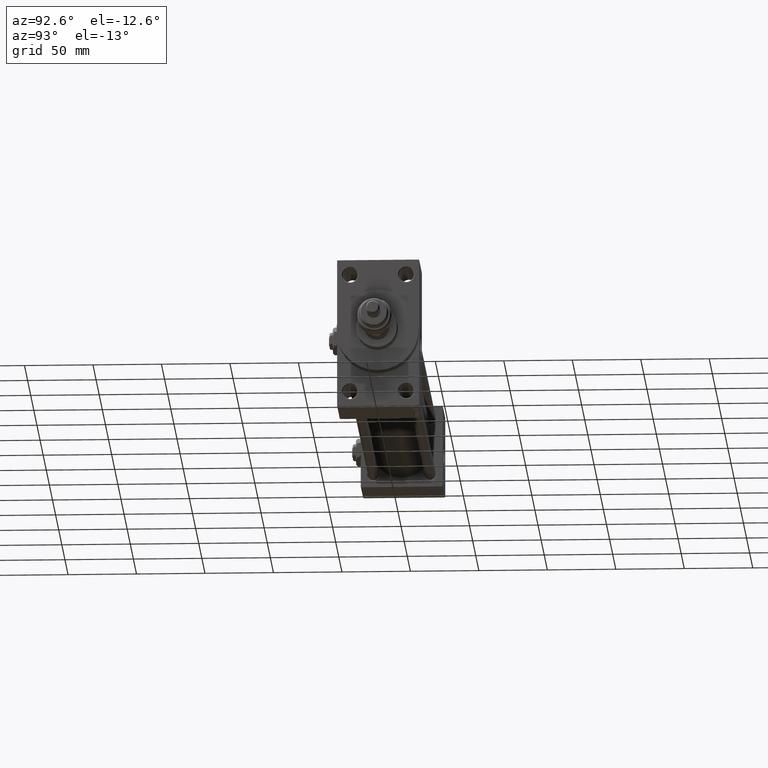
[diagram: clean part render]
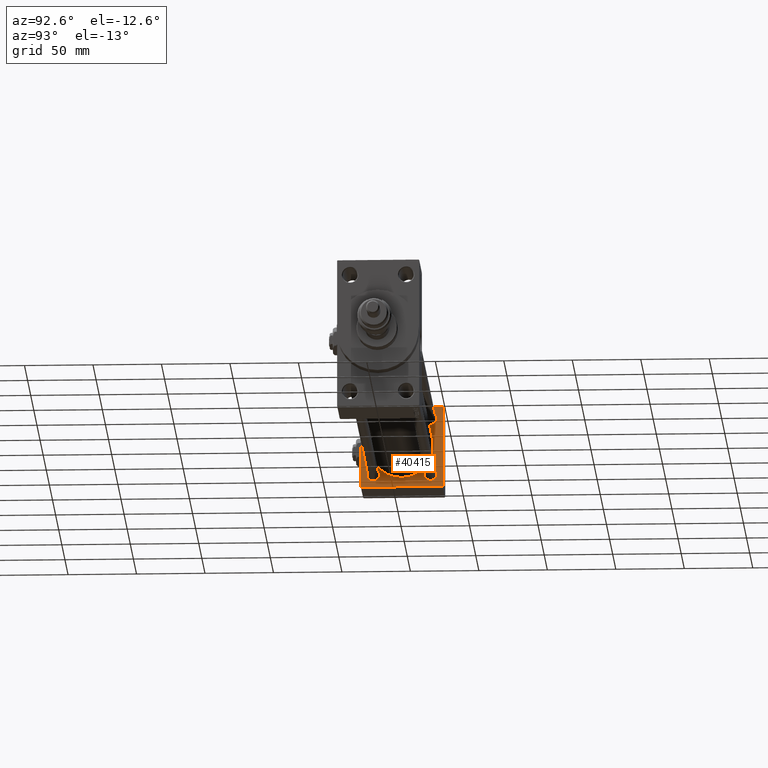
[diagram: same view with one face highlighted and labeled with its STEP entity id]
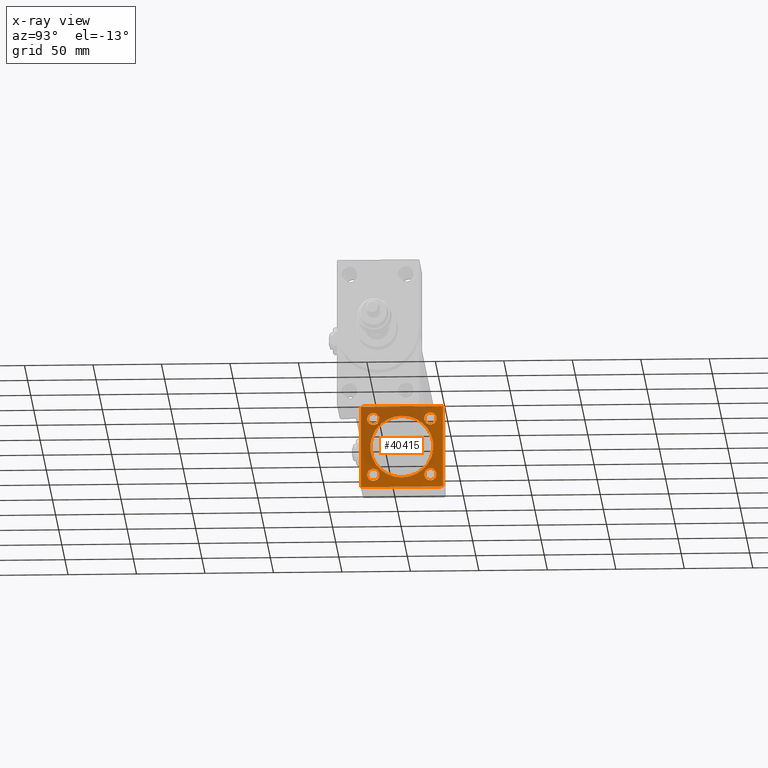
[diagram: x-ray of the same camera — body ghosted, the highlighted face saturated]
A machine part, auxiliary view. The second image highlights one B-rep face of the part: STEP entity #40415.
The next image is the same camera in x-ray: the body ghosted, the highlighted face saturated — about 42% of this face is hidden behind the body in this view.
In plain terms, the highlighted planar face has unit normal (-1, 0, 0).
Its self-contained STEP definition (entity closure, byte-faithful):
#711 = DIRECTION ( 'NONE',  ( 0.000000000000000000, 0.000000000000000000, 1.000000000000000000 ) ) ;
#742 = CARTESIAN_POINT ( 'NONE',  ( 36.99999999999997868, -2.602085213965210642E-15, 0.000000000000000000 ) ) ;
#825 = FACE_OUTER_BOUND ( 'NONE', #29145, .T. ) ;
#937 = EDGE_LOOP ( 'NONE', ( #11027, #6806 ) ) ;
#1922 = EDGE_CURVE ( 'NONE', #8407, #18003, #30887, .T. ) ;
#1980 = CIRCLE ( 'NONE', #12115, 4.499999999999948486 ) ;
#1992 = VERTEX_POINT ( 'NONE', #27371 ) ;
#3223 = DIRECTION ( 'NONE',  ( 0.000000000000000000, 0.000000000000000000, -1.000000000000000000 ) ) ;
#3357 = VERTEX_POINT ( 'NONE', #50606 ) ;
#3546 = EDGE_LOOP ( 'NONE', ( #45338, #19211 ) ) ;
#4081 = EDGE_CURVE ( 'NONE', #41299, #15982, #1980, .T. ) ;
#4330 = CARTESIAN_POINT ( 'NONE',  ( 37.00000000000000000, 20.84999999999999787, 16.35000000000005116 ) ) ;
#4515 = FACE_BOUND ( 'NONE', #40660, .T. ) ;
#5485 = AXIS2_PLACEMENT_3D ( 'NONE', #30719, #42828, #6760 ) ;
#5816 = DIRECTION ( 'NONE',  ( -0.000000000000000000, 0.000000000000000000, 1.000000000000000000 ) ) ;
#6308 = CARTESIAN_POINT ( 'NONE',  ( 37.00000000000000000, -20.84999999999999076, 20.85000000000000497 ) ) ;
#6760 = DIRECTION ( 'NONE',  ( 0.000000000000000000, 0.000000000000000000, 1.000000000000000000 ) ) ;
#6806 = ORIENTED_EDGE ( 'NONE', *, *, #28865, .T. ) ;
#7204 = ORIENTED_EDGE ( 'NONE', *, *, #37192, .T. ) ;
#8170 = DIRECTION ( 'NONE',  ( 0.000000000000000000, 0.000000000000000000, 1.000000000000000000 ) ) ;
#8201 = LINE ( 'NONE', #24282, #18534 ) ;
#8292 = CARTESIAN_POINT ( 'NONE',  ( 37.00000000000000000, 20.84999999999999787, 25.34999999999994813 ) ) ;
#8407 = VERTEX_POINT ( 'NONE', #12892 ) ;
#8701 = CARTESIAN_POINT ( 'NONE',  ( 37.00000000000000000, 20.84999999999999787, -20.85000000000000142 ) ) ;
#9257 = FACE_BOUND ( 'NONE', #3546, .T. ) ;
#9828 = CARTESIAN_POINT ( 'NONE',  ( 37.00000000000000000, -29.50000000000000000, -30.00000000000000711 ) ) ;
#9992 = VERTEX_POINT ( 'NONE', #39918 ) ;
#10056 = CARTESIAN_POINT ( 'NONE',  ( 37.00000000000000000, 29.99999999999999289, -30.00000000000000000 ) ) ;
#10445 = DIRECTION ( 'NONE',  ( -1.000000000000000000, 0.000000000000000000, -0.000000000000000000 ) ) ;
#10509 = ORIENTED_EDGE ( 'NONE', *, *, #1922, .F. ) ;
#10607 = CARTESIAN_POINT ( 'NONE',  ( 37.00000000000000000, 20.84999999999999787, -16.35000000000005116 ) ) ;
#11027 = ORIENTED_EDGE ( 'NONE', *, *, #15698, .T. ) ;
#11511 = VECTOR ( 'NONE', #45827, 999.9999999999998863 ) ;
#12115 = AXIS2_PLACEMENT_3D ( 'NONE', #46524, #10445, #33367 ) ;
#12577 = ORIENTED_EDGE ( 'NONE', *, *, #13838, .T. ) ;
#12760 = VERTEX_POINT ( 'NONE', #47986 ) ;
#12892 = CARTESIAN_POINT ( 'NONE',  ( 37.00000000000000000, 29.99999999999999289, 29.50000000000000000 ) ) ;
#13353 = ORIENTED_EDGE ( 'NONE', *, *, #13804, .T. ) ;
#13804 = EDGE_CURVE ( 'NONE', #12760, #18003, #41604, .T. ) ;
#13838 = EDGE_CURVE ( 'NONE', #17183, #50566, #26672, .T. ) ;
#14189 = ORIENTED_EDGE ( 'NONE', *, *, #18550, .T. ) ;
#14493 = CARTESIAN_POINT ( 'NONE',  ( 37.00000000000000000, 29.99999999999999289, -29.50000000000000000 ) ) ;
#15287 = LINE ( 'NONE', #38982, #45207 ) ;
#15495 = EDGE_LOOP ( 'NONE', ( #17549, #51098 ) ) ;
#15627 = CIRCLE ( 'NONE', #5485, 4.499999999999948486 ) ;
#15676 = LINE ( 'NONE', #30953, #40955 ) ;
#15698 = EDGE_CURVE ( 'NONE', #31488, #22101, #25046, .T. ) ;
#15931 = AXIS2_PLACEMENT_3D ( 'NONE', #49439, #17052, #711 ) ;
#15982 = VERTEX_POINT ( 'NONE', #8292 ) ;
#16550 = AXIS2_PLACEMENT_3D ( 'NONE', #6308, #21884, #22394 ) ;
#17052 = DIRECTION ( 'NONE',  ( -1.000000000000000000, 0.000000000000000000, -0.000000000000000000 ) ) ;
#17183 = VERTEX_POINT ( 'NONE', #35761 ) ;
#17279 = AXIS2_PLACEMENT_3D ( 'NONE', #8701, #45547, #28974 ) ;
#17372 = VERTEX_POINT ( 'NONE', #27023 ) ;
#17549 = ORIENTED_EDGE ( 'NONE', *, *, #18882, .F. ) ;
#17786 = ORIENTED_EDGE ( 'NONE', *, *, #4081, .T. ) ;
#18003 = VERTEX_POINT ( 'NONE', #37920 ) ;
#18265 = CARTESIAN_POINT ( 'NONE',  ( 37.00000000000000000, 29.99999999999999289, 30.00000000000000000 ) ) ;
#18534 = VECTOR ( 'NONE', #3223, 1000.000000000000000 ) ;
#18550 = EDGE_CURVE ( 'NONE', #44115, #9992, #8201, .T. ) ;
#18561 = AXIS2_PLACEMENT_3D ( 'NONE', #742, #45502, #44470 ) ;
#18882 = EDGE_CURVE ( 'NONE', #17372, #3357, #34540, .T. ) ;
#19211 = ORIENTED_EDGE ( 'NONE', *, *, #43689, .T. ) ;
#19374 = CARTESIAN_POINT ( 'NONE',  ( 37.00000000000000000, -20.84999999999999076, -20.85000000000000497 ) ) ;
#19760 = DIRECTION ( 'NONE',  ( 0.000000000000000000, -1.000000000000000000, -1.156482317317871725E-16 ) ) ;
#20018 = CARTESIAN_POINT ( 'NONE',  ( 37.00000000000000000, 20.84999999999999787, -20.85000000000000142 ) ) ;
#20036 = ORIENTED_EDGE ( 'NONE', *, *, #32322, .T. ) ;
#20313 = ORIENTED_EDGE ( 'NONE', *, *, #32366, .T. ) ;
#20846 = AXIS2_PLACEMENT_3D ( 'NONE', #20018, #27909, #44214 ) ;
#21500 = CARTESIAN_POINT ( 'NONE',  ( 36.99999999999997868, -2.602085213965210642E-15, 0.000000000000000000 ) ) ;
#21686 = CARTESIAN_POINT ( 'NONE',  ( 37.00000000000000000, -29.50000000000001066, -30.00000000000000711 ) ) ;
#21884 = DIRECTION ( 'NONE',  ( -1.000000000000000000, 0.000000000000000000, -0.000000000000000000 ) ) ;
#21951 = VERTEX_POINT ( 'NONE', #9828 ) ;
#22101 = VERTEX_POINT ( 'NONE', #10607 ) ;
#22394 = DIRECTION ( 'NONE',  ( 0.000000000000000000, 0.000000000000000000, 1.000000000000000000 ) ) ;
#22575 = CIRCLE ( 'NONE', #52023, 23.00000000000000000 ) ;
#22882 = EDGE_CURVE ( 'NONE', #12760, #21951, #29800, .T. ) ;
#23486 = CARTESIAN_POINT ( 'NONE',  ( 37.00000000000000000, -20.84999999999999076, -20.85000000000000497 ) ) ;
#23612 = CARTESIAN_POINT ( 'NONE',  ( 37.00000000000000000, 20.84999999999999787, -25.34999999999994813 ) ) ;
#24282 = CARTESIAN_POINT ( 'NONE',  ( 37.00000000000000000, -30.00000000000000000, 29.99999999999999289 ) ) ;
#24349 = AXIS2_PLACEMENT_3D ( 'NONE', #41362, #49029, #5816 ) ;
#24806 = PLANE ( 'NONE',  #24349 ) ;
#25046 = CIRCLE ( 'NONE', #20846, 4.499999999999948486 ) ;
#25327 = FACE_BOUND ( 'NONE', #937, .T. ) ;
#26672 = CIRCLE ( 'NONE', #16550, 4.499999999999948486 ) ;
#27023 = CARTESIAN_POINT ( 'NONE',  ( 36.99999999999997868, -2.602085213965210642E-15, 23.00000000000000000 ) ) ;
#27371 = CARTESIAN_POINT ( 'NONE',  ( 37.00000000000000000, -20.84999999999999076, -16.35000000000005471 ) ) ;
#27909 = DIRECTION ( 'NONE',  ( -1.000000000000000000, 0.000000000000000000, -0.000000000000000000 ) ) ;
#28547 = LINE ( 'NONE', #21686, #35146 ) ;
#28865 = EDGE_CURVE ( 'NONE', #22101, #31488, #34950, .T. ) ;
#28894 = CARTESIAN_POINT ( 'NONE',  ( 37.00000000000000000, -30.00000000000000000, 29.49999999999999289 ) ) ;
#28974 = DIRECTION ( 'NONE',  ( 0.000000000000000000, 0.000000000000000000, 1.000000000000000000 ) ) ;
#29145 = EDGE_LOOP ( 'NONE', ( #50443, #13353, #10509, #29384, #40782, #20313, #14189, #7204 ) ) ;
#29384 = ORIENTED_EDGE ( 'NONE', *, *, #47379, .T. ) ;
#29800 = LINE ( 'NONE', #10056, #38888 ) ;
#30028 = CARTESIAN_POINT ( 'NONE',  ( 37.00000000000000000, -29.49999999999998579, 29.99999999999999289 ) ) ;
#30683 = DIRECTION ( 'NONE',  ( 0.000000000000000000, -0.7071067811865474617, 0.7071067811865474617 ) ) ;
#30719 = CARTESIAN_POINT ( 'NONE',  ( 37.00000000000000000, 20.84999999999999787, 20.85000000000000142 ) ) ;
#30887 = LINE ( 'NONE', #18265, #35585 ) ;
#30953 = CARTESIAN_POINT ( 'NONE',  ( 37.00000000000000000, 29.49999999999999289, 30.00000000000000000 ) ) ;
#31488 = VERTEX_POINT ( 'NONE', #23612 ) ;
#32021 = LINE ( 'NONE', #47585, #45034 ) ;
#32147 = VERTEX_POINT ( 'NONE', #41257 ) ;
#32322 = EDGE_CURVE ( 'NONE', #15982, #41299, #15627, .T. ) ;
#32366 = EDGE_CURVE ( 'NONE', #37534, #44115, #32021, .T. ) ;
#32712 = FACE_BOUND ( 'NONE', #48722, .T. ) ;
#33000 = DIRECTION ( 'NONE',  ( 0.000000000000000000, 0.7071067811865474617, -0.7071067811865474617 ) ) ;
#33367 = DIRECTION ( 'NONE',  ( 0.000000000000000000, 0.000000000000000000, 1.000000000000000000 ) ) ;
#33505 = AXIS2_PLACEMENT_3D ( 'NONE', #19374, #36206, #35950 ) ;
#33978 = ORIENTED_EDGE ( 'NONE', *, *, #44104, .T. ) ;
#34327 = DIRECTION ( 'NONE',  ( 0.000000000000000000, 0.000000000000000000, -1.000000000000000000 ) ) ;
#34540 = CIRCLE ( 'NONE', #18561, 23.00000000000000000 ) ;
#34950 = CIRCLE ( 'NONE', #17279, 4.499999999999948486 ) ;
#35146 = VECTOR ( 'NONE', #33000, 1000.000000000000114 ) ;
#35585 = VECTOR ( 'NONE', #34327, 1000.000000000000000 ) ;
#35761 = CARTESIAN_POINT ( 'NONE',  ( 37.00000000000000000, -20.84999999999999076, 25.34999999999995168 ) ) ;
#35950 = DIRECTION ( 'NONE',  ( 0.000000000000000000, 0.000000000000000000, 1.000000000000000000 ) ) ;
#36206 = DIRECTION ( 'NONE',  ( -1.000000000000000000, 0.000000000000000000, -0.000000000000000000 ) ) ;
#36794 = CARTESIAN_POINT ( 'NONE',  ( 37.00000000000000000, -20.84999999999999076, 16.35000000000005471 ) ) ;
#37192 = EDGE_CURVE ( 'NONE', #9992, #21951, #28547, .T. ) ;
#37534 = VERTEX_POINT ( 'NONE', #30028 ) ;
#37920 = CARTESIAN_POINT ( 'NONE',  ( 37.00000000000000000, 29.99999999999999289, -29.50000000000000000 ) ) ;
#38888 = VECTOR ( 'NONE', #45867, 1000.000000000000000 ) ;
#38933 = EDGE_CURVE ( 'NONE', #3357, #17372, #22575, .T. ) ;
#38982 = CARTESIAN_POINT ( 'NONE',  ( 37.00000000000000000, 29.99999999999999289, 30.00000000000000000 ) ) ;
#39105 = EDGE_CURVE ( 'NONE', #45878, #1992, #43588, .T. ) ;
#39918 = CARTESIAN_POINT ( 'NONE',  ( 37.00000000000000000, -30.00000000000000000, -29.50000000000001776 ) ) ;
#40415 = ADVANCED_FACE ( 'NONE', ( #9257, #25327, #4515, #32712, #48777, #825 ), #24806, .F. ) ;
#40660 = EDGE_LOOP ( 'NONE', ( #33978, #12577 ) ) ;
#40782 = ORIENTED_EDGE ( 'NONE', *, *, #51843, .T. ) ;
#40955 = VECTOR ( 'NONE', #30683, 1000.000000000000114 ) ;
#41257 = CARTESIAN_POINT ( 'NONE',  ( 37.00000000000000000, 29.49999999999999289, 30.00000000000000000 ) ) ;
#41299 = VERTEX_POINT ( 'NONE', #4330 ) ;
#41362 = CARTESIAN_POINT ( 'NONE',  ( 37.00000000000000000, 0.000000000000000000, 0.000000000000000000 ) ) ;
#41604 = LINE ( 'NONE', #14493, #11511 ) ;
#41798 = CARTESIAN_POINT ( 'NONE',  ( 37.00000000000000000, -20.84999999999999076, -25.34999999999995168 ) ) ;
#41953 = CIRCLE ( 'NONE', #42816, 4.499999999999948486 ) ;
#42816 = AXIS2_PLACEMENT_3D ( 'NONE', #23486, #44757, #8170 ) ;
#42828 = DIRECTION ( 'NONE',  ( -1.000000000000000000, 0.000000000000000000, -0.000000000000000000 ) ) ;
#43588 = CIRCLE ( 'NONE', #33505, 4.499999999999948486 ) ;
#43689 = EDGE_CURVE ( 'NONE', #1992, #45878, #41953, .T. ) ;
#44104 = EDGE_CURVE ( 'NONE', #50566, #17183, #51228, .T. ) ;
#44115 = VERTEX_POINT ( 'NONE', #28894 ) ;
#44214 = DIRECTION ( 'NONE',  ( 0.000000000000000000, 0.000000000000000000, 1.000000000000000000 ) ) ;
#44470 = DIRECTION ( 'NONE',  ( 0.000000000000000000, 0.000000000000000000, 1.000000000000000000 ) ) ;
#44757 = DIRECTION ( 'NONE',  ( -1.000000000000000000, 0.000000000000000000, -0.000000000000000000 ) ) ;
#45034 = VECTOR ( 'NONE', #48094, 1000.000000000000114 ) ;
#45207 = VECTOR ( 'NONE', #19760, 1000.000000000000000 ) ;
#45338 = ORIENTED_EDGE ( 'NONE', *, *, #39105, .T. ) ;
#45502 = DIRECTION ( 'NONE',  ( 1.000000000000000000, -0.000000000000000000, 0.000000000000000000 ) ) ;
#45547 = DIRECTION ( 'NONE',  ( -1.000000000000000000, 0.000000000000000000, -0.000000000000000000 ) ) ;
#45827 = DIRECTION ( 'NONE',  ( -0.000000000000000000, 0.7071067811865574537, 0.7071067811865376918 ) ) ;
#45867 = DIRECTION ( 'NONE',  ( 0.000000000000000000, -1.000000000000000000, -1.156482317317871725E-16 ) ) ;
#45878 = VERTEX_POINT ( 'NONE', #41798 ) ;
#46524 = CARTESIAN_POINT ( 'NONE',  ( 37.00000000000000000, 20.84999999999999787, 20.85000000000000142 ) ) ;
#47379 = EDGE_CURVE ( 'NONE', #8407, #32147, #15676, .T. ) ;
#47585 = CARTESIAN_POINT ( 'NONE',  ( 37.00000000000000000, -30.00000000000000000, 29.49999999999999289 ) ) ;
#47986 = CARTESIAN_POINT ( 'NONE',  ( 37.00000000000000000, 29.49999999999997868, -30.00000000000000000 ) ) ;
#48094 = DIRECTION ( 'NONE',  ( -0.000000000000000000, -0.7071067811865474617, -0.7071067811865474617 ) ) ;
#48722 = EDGE_LOOP ( 'NONE', ( #17786, #20036 ) ) ;
#48777 = FACE_BOUND ( 'NONE', #15495, .T. ) ;
#49029 = DIRECTION ( 'NONE',  ( -1.000000000000000000, 0.000000000000000000, -0.000000000000000000 ) ) ;
#49439 = CARTESIAN_POINT ( 'NONE',  ( 37.00000000000000000, -20.84999999999999076, 20.85000000000000497 ) ) ;
#50198 = DIRECTION ( 'NONE',  ( 0.000000000000000000, 0.000000000000000000, 1.000000000000000000 ) ) ;
#50443 = ORIENTED_EDGE ( 'NONE', *, *, #22882, .F. ) ;
#50458 = DIRECTION ( 'NONE',  ( 1.000000000000000000, -0.000000000000000000, 0.000000000000000000 ) ) ;
#50566 = VERTEX_POINT ( 'NONE', #36794 ) ;
#50606 = CARTESIAN_POINT ( 'NONE',  ( 36.99999999999997868, 2.146024240737016609E-16, -23.00000000000000000 ) ) ;
#51098 = ORIENTED_EDGE ( 'NONE', *, *, #38933, .F. ) ;
#51228 = CIRCLE ( 'NONE', #15931, 4.499999999999948486 ) ;
#51843 = EDGE_CURVE ( 'NONE', #32147, #37534, #15287, .T. ) ;
#52023 = AXIS2_PLACEMENT_3D ( 'NONE', #21500, #50458, #50198 ) ;